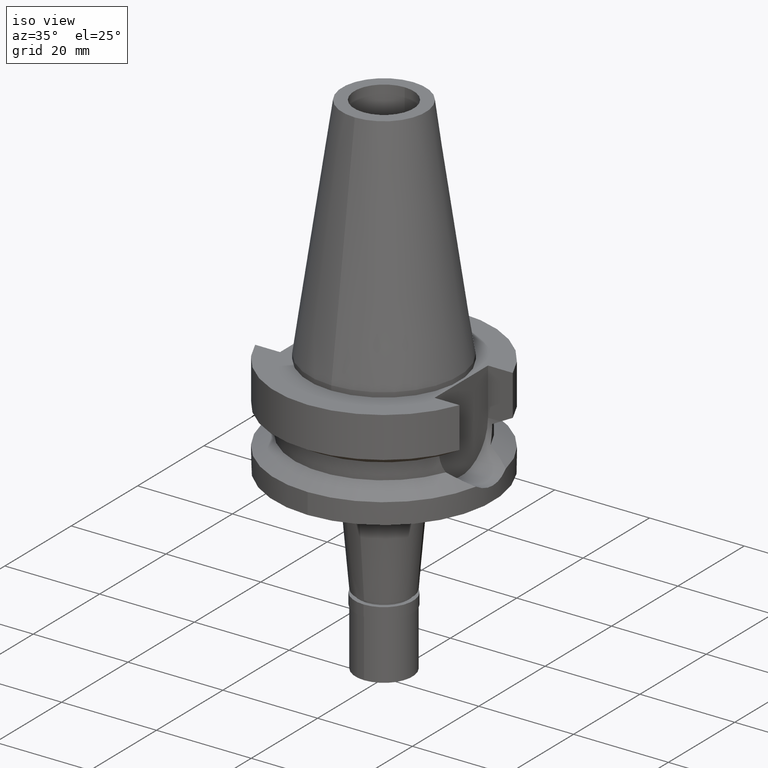
[diagram: clean part render]
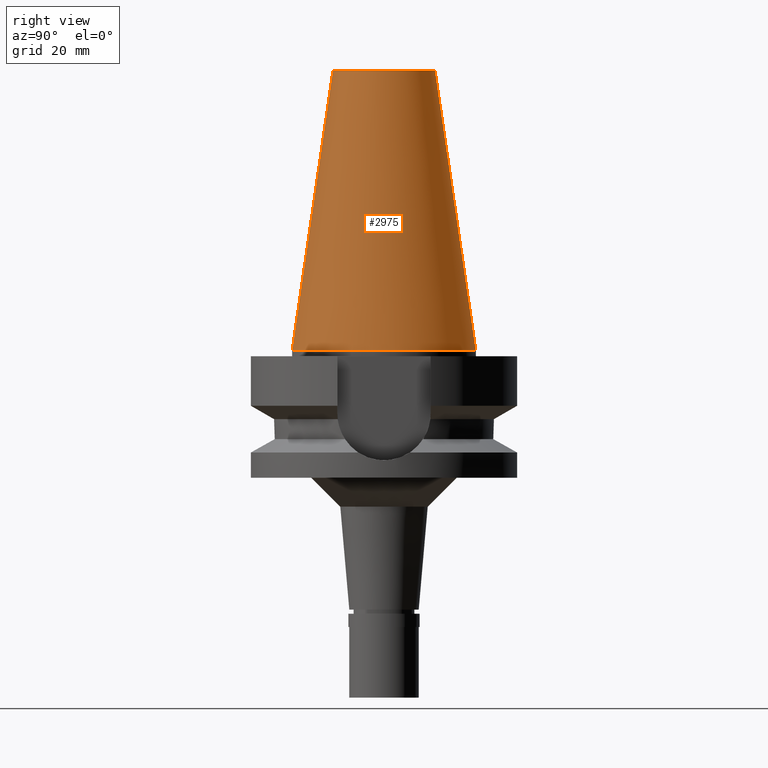
[diagram: tour spotlight — one face highlighted and labeled with its STEP entity id]
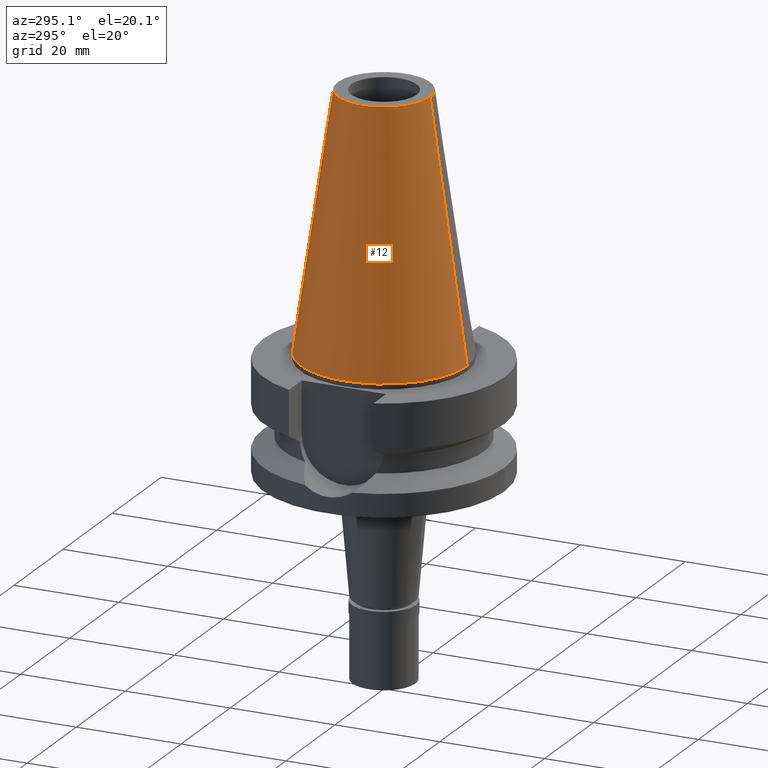
[diagram: tour spotlight — one face highlighted and labeled with its STEP entity id]
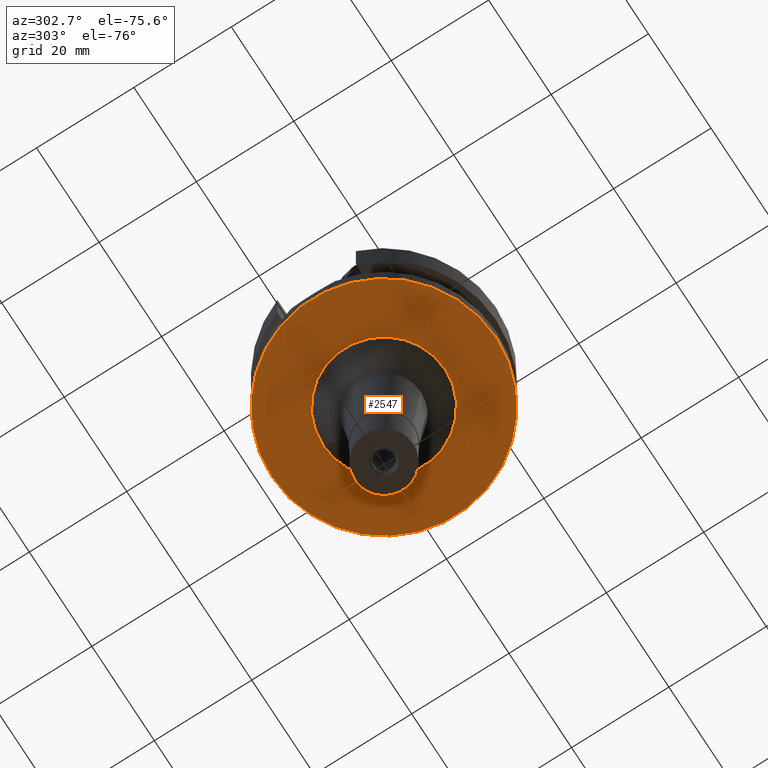
[diagram: tour spotlight — one face highlighted and labeled with its STEP entity id]
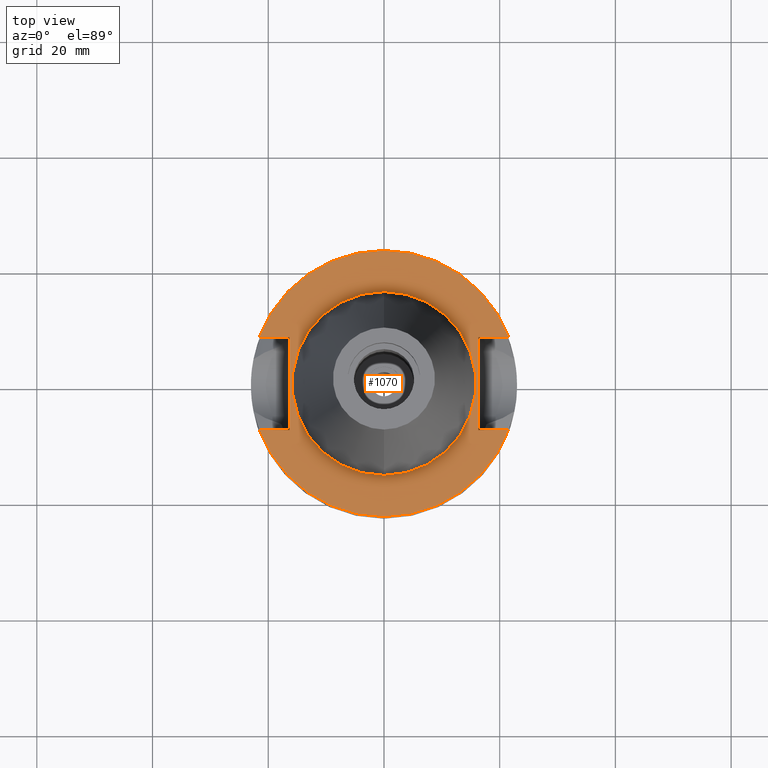
[diagram: tour spotlight — one face highlighted and labeled with its STEP entity id]
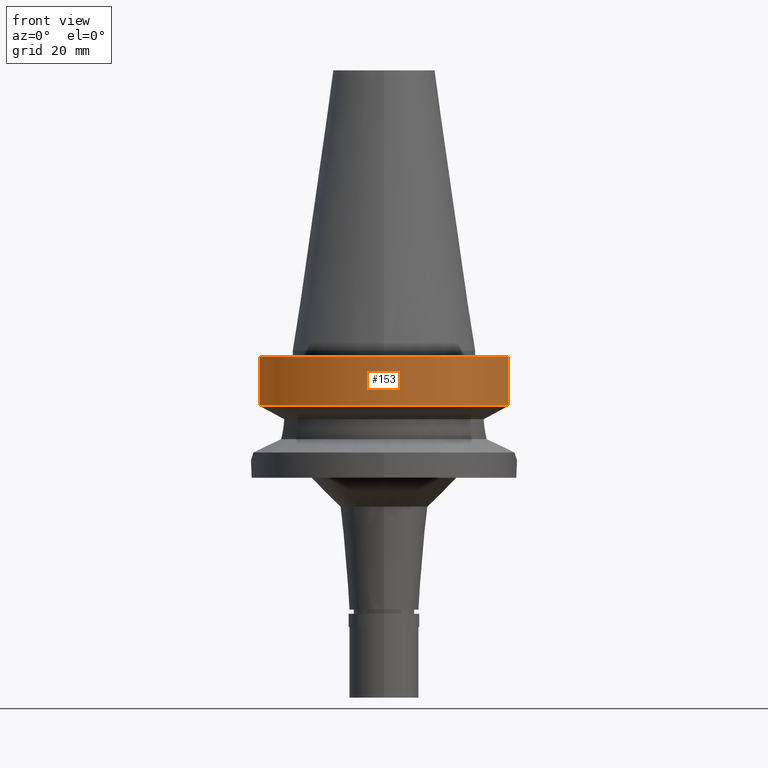
[diagram: tour spotlight — one face highlighted and labeled with its STEP entity id]
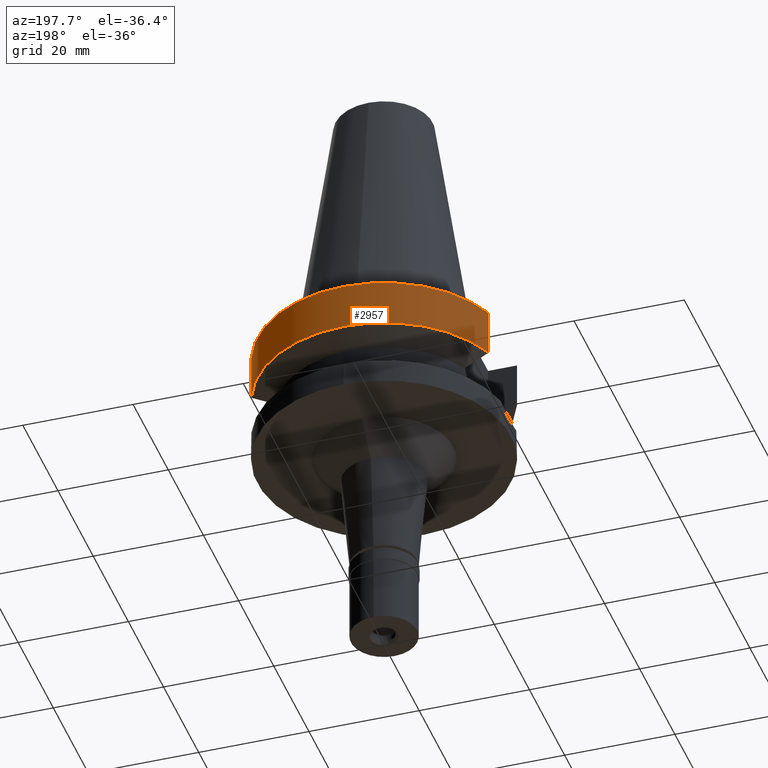
[diagram: tour spotlight — one face highlighted and labeled with its STEP entity id]
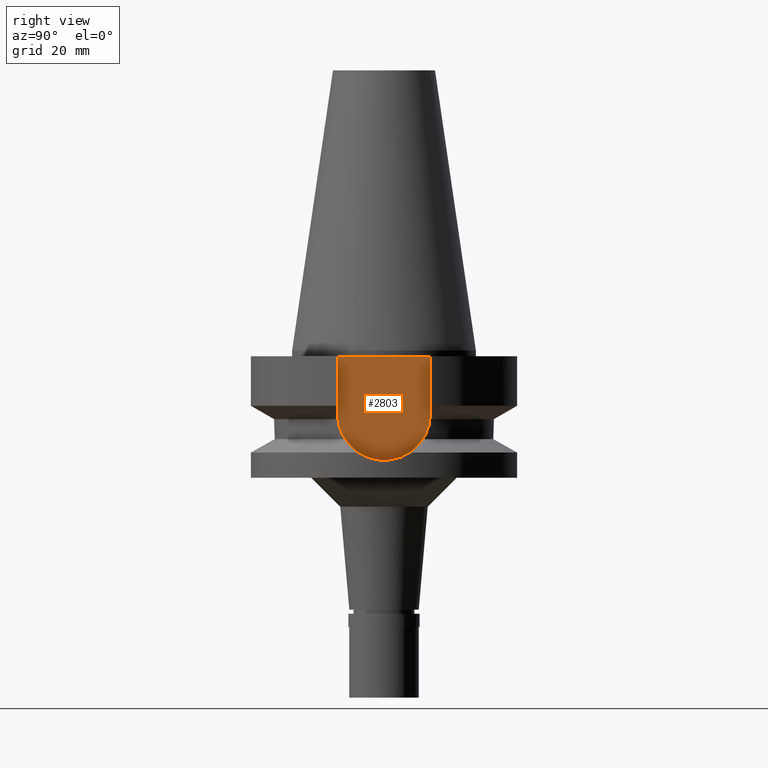
[diagram: tour spotlight — one face highlighted and labeled with its STEP entity id]
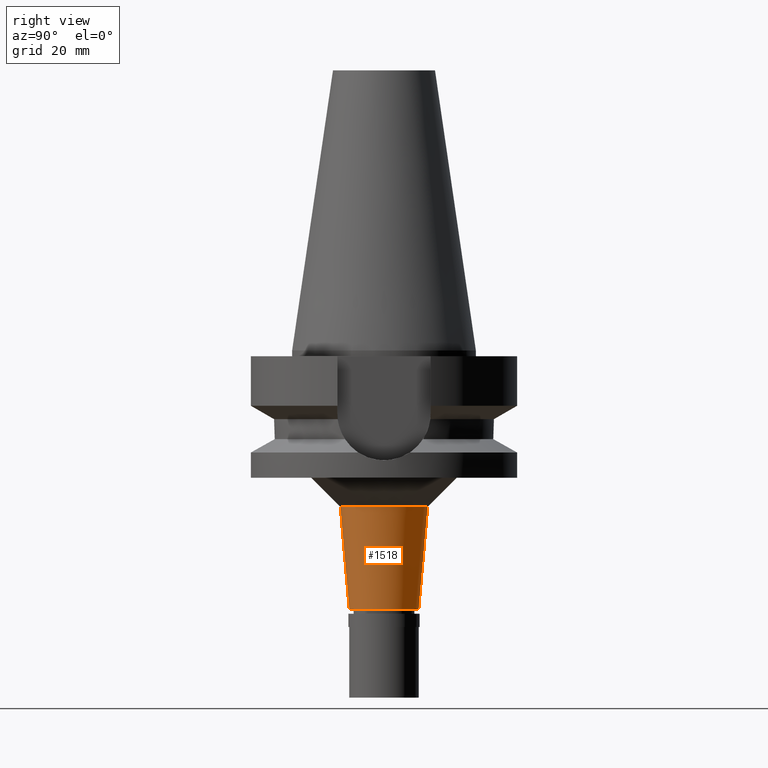
[diagram: tour spotlight — one face highlighted and labeled with its STEP entity id]
A machine part: a face-by-face anatomy tour. The part has 74 B-rep faces; the first image is the clean iso view, then the 8 largest visible faces are spotlighted one at a time (largest first), each with its STEP entity span.

Face 1 — right view, entity #2975. In plain terms, the highlighted conical surface has half-angle 8.297 deg.
Definition (entity closure, byte-faithful):
#155 = CARTESIAN_POINT ( 'NONE',  ( 0.0000000000000000000, 8.816791732783000768, 48.39999999999999858 ) ) ;
#178 = DIRECTION ( 'NONE',  ( 0.0000000000000000000, -0.1443043893539925626, -0.9895333461855498891 ) ) ;
#392 = CARTESIAN_POINT ( 'NONE',  ( 0.0000000000000000000, -15.87500000000000000, -1.598721155459999993E-13 ) ) ;
#451 = CARTESIAN_POINT ( 'NONE',  ( 0.0000000000000000000, 1.521011324540999938E-14, 48.39999999999999858 ) ) ;
#531 = CIRCLE ( 'NONE', #2127, 8.816791732783000768 ) ;
#665 = AXIS2_PLACEMENT_3D ( 'NONE', #2446, #2285, #856 ) ;
#800 = CARTESIAN_POINT ( 'NONE',  ( 0.0000000000000000000, 8.816791732783000768, 48.39999999999999858 ) ) ;
#822 = CONICAL_SURFACE ( 'NONE', #912, 12.34589586639000025, 0.1448099680379422438 ) ;
#856 = DIRECTION ( 'NONE',  ( 0.0000000000000000000, 1.000000000000000000, 0.0000000000000000000 ) ) ;
#875 = ORIENTED_EDGE ( 'NONE', *, *, #1558, .F. ) ;
#908 = CIRCLE ( 'NONE', #665, 15.87500000000000000 ) ;
#912 = AXIS2_PLACEMENT_3D ( 'NONE', #1151, #914, #1185 ) ;
#914 = DIRECTION ( 'NONE',  ( 0.0000000000000000000, 0.0000000000000000000, -1.000000000000000000 ) ) ;
#1147 = VERTEX_POINT ( 'NONE', #1782 ) ;
#1151 = CARTESIAN_POINT ( 'NONE',  ( 0.0000000000000000000, 1.521011324540999938E-14, 24.19999999999999929 ) ) ;
#1159 = EDGE_LOOP ( 'NONE', ( #1334, #1340, #875, #2076 ) ) ;
#1185 = DIRECTION ( 'NONE',  ( 0.0000000000000000000, -1.000000000000000000, 0.0000000000000000000 ) ) ;
#1334 = ORIENTED_EDGE ( 'NONE', *, *, #2902, .T. ) ;
#1340 = ORIENTED_EDGE ( 'NONE', *, *, #1533, .T. ) ;
#1381 = CARTESIAN_POINT ( 'NONE',  ( 0.0000000000000000000, 15.87500000000000000, -1.598721155459999993E-13 ) ) ;
#1391 = DIRECTION ( 'NONE',  ( 0.0000000000000000000, 1.000000000000000000, 0.0000000000000000000 ) ) ;
#1533 = EDGE_CURVE ( 'NONE', #1147, #2788, #2464, .T. ) ;
#1558 = EDGE_CURVE ( 'NONE', #2965, #2788, #908, .T. ) ;
#1782 = CARTESIAN_POINT ( 'NONE',  ( 0.0000000000000000000, -8.816791732783000768, 48.39999999999999858 ) ) ;
#2001 = DIRECTION ( 'NONE',  ( 0.0000000000000000000, 0.1443043893539925626, -0.9895333461855498891 ) ) ;
#2076 = ORIENTED_EDGE ( 'NONE', *, *, #2440, .F. ) ;
#2127 = AXIS2_PLACEMENT_3D ( 'NONE', #451, #2750, #1391 ) ;
#2228 = LINE ( 'NONE', #155, #2683 ) ;
#2252 = CARTESIAN_POINT ( 'NONE',  ( 0.0000000000000000000, -8.816791732783000768, 48.39999999999999858 ) ) ;
#2285 = DIRECTION ( 'NONE',  ( 0.0000000000000000000, 0.0000000000000000000, -1.000000000000000000 ) ) ;
#2292 = FACE_OUTER_BOUND ( 'NONE', #1159, .T. ) ;
#2401 = VECTOR ( 'NONE', #178, 1000.000000000000114 ) ;
#2440 = EDGE_CURVE ( 'NONE', #2659, #2965, #2228, .T. ) ;
#2446 = CARTESIAN_POINT ( 'NONE',  ( 0.0000000000000000000, 1.521011324540999938E-14, -3.694822225953000089E-13 ) ) ;
#2464 = LINE ( 'NONE', #2252, #2401 ) ;
#2659 = VERTEX_POINT ( 'NONE', #800 ) ;
#2683 = VECTOR ( 'NONE', #2001, 1000.000000000000114 ) ;
#2750 = DIRECTION ( 'NONE',  ( 0.0000000000000000000, 0.0000000000000000000, -1.000000000000000000 ) ) ;
#2788 = VERTEX_POINT ( 'NONE', #392 ) ;
#2902 = EDGE_CURVE ( 'NONE', #2659, #1147, #531, .T. ) ;
#2965 = VERTEX_POINT ( 'NONE', #1381 ) ;
#2975 = ADVANCED_FACE ( 'NONE', ( #2292 ), #822, .T. ) ;

Face 2 — auxiliary view, entity #12. In plain terms, the highlighted conical surface has half-angle 8.297 deg.
Definition (entity closure, byte-faithful):
#12 = ADVANCED_FACE ( 'NONE', ( #277 ), #1936, .T. ) ;
#91 = DIRECTION ( 'NONE',  ( 0.0000000000000000000, 0.0000000000000000000, -1.000000000000000000 ) ) ;
#97 = DIRECTION ( 'NONE',  ( 0.0000000000000000000, -1.000000000000000000, 0.0000000000000000000 ) ) ;
#155 = CARTESIAN_POINT ( 'NONE',  ( 0.0000000000000000000, 8.816791732783000768, 48.39999999999999858 ) ) ;
#178 = DIRECTION ( 'NONE',  ( 0.0000000000000000000, -0.1443043893539925626, -0.9895333461855498891 ) ) ;
#277 = FACE_OUTER_BOUND ( 'NONE', #2598, .T. ) ;
#278 = DIRECTION ( 'NONE',  ( 0.0000000000000000000, 0.0000000000000000000, -1.000000000000000000 ) ) ;
#392 = CARTESIAN_POINT ( 'NONE',  ( 0.0000000000000000000, -15.87500000000000000, -1.598721155459999993E-13 ) ) ;
#493 = DIRECTION ( 'NONE',  ( 0.0000000000000000000, -1.000000000000000000, 0.0000000000000000000 ) ) ;
#519 = ORIENTED_EDGE ( 'NONE', *, *, #2604, .F. ) ;
#576 = CIRCLE ( 'NONE', #1009, 8.816791732783000768 ) ;
#791 = CARTESIAN_POINT ( 'NONE',  ( 0.0000000000000000000, 1.521011324540999938E-14, 24.19999999999999929 ) ) ;
#800 = CARTESIAN_POINT ( 'NONE',  ( 0.0000000000000000000, 8.816791732783000768, 48.39999999999999858 ) ) ;
#1009 = AXIS2_PLACEMENT_3D ( 'NONE', #2346, #278, #493 ) ;
#1020 = AXIS2_PLACEMENT_3D ( 'NONE', #791, #2595, #97 ) ;
#1094 = ORIENTED_EDGE ( 'NONE', *, *, #1533, .F. ) ;
#1107 = ORIENTED_EDGE ( 'NONE', *, *, #2112, .T. ) ;
#1147 = VERTEX_POINT ( 'NONE', #1782 ) ;
#1381 = CARTESIAN_POINT ( 'NONE',  ( 0.0000000000000000000, 15.87500000000000000, -1.598721155459999993E-13 ) ) ;
#1466 = CARTESIAN_POINT ( 'NONE',  ( 0.0000000000000000000, 1.521011324540999938E-14, -3.694822225953000089E-13 ) ) ;
#1494 = CIRCLE ( 'NONE', #2029, 15.87500000000000000 ) ;
#1533 = EDGE_CURVE ( 'NONE', #1147, #2788, #2464, .T. ) ;
#1782 = CARTESIAN_POINT ( 'NONE',  ( 0.0000000000000000000, -8.816791732783000768, 48.39999999999999858 ) ) ;
#1873 = DIRECTION ( 'NONE',  ( 0.0000000000000000000, -1.000000000000000000, 0.0000000000000000000 ) ) ;
#1936 = CONICAL_SURFACE ( 'NONE', #1020, 12.34589586639000025, 0.1448099680379422438 ) ;
#2001 = DIRECTION ( 'NONE',  ( 0.0000000000000000000, 0.1443043893539925626, -0.9895333461855498891 ) ) ;
#2029 = AXIS2_PLACEMENT_3D ( 'NONE', #1466, #91, #1873 ) ;
#2112 = EDGE_CURVE ( 'NONE', #1147, #2659, #576, .T. ) ;
#2228 = LINE ( 'NONE', #155, #2683 ) ;
#2252 = CARTESIAN_POINT ( 'NONE',  ( 0.0000000000000000000, -8.816791732783000768, 48.39999999999999858 ) ) ;
#2331 = ORIENTED_EDGE ( 'NONE', *, *, #2440, .T. ) ;
#2346 = CARTESIAN_POINT ( 'NONE',  ( 0.0000000000000000000, 1.521011324540999938E-14, 48.39999999999999858 ) ) ;
#2401 = VECTOR ( 'NONE', #178, 1000.000000000000114 ) ;
#2440 = EDGE_CURVE ( 'NONE', #2659, #2965, #2228, .T. ) ;
#2464 = LINE ( 'NONE', #2252, #2401 ) ;
#2595 = DIRECTION ( 'NONE',  ( 0.0000000000000000000, 0.0000000000000000000, -1.000000000000000000 ) ) ;
#2598 = EDGE_LOOP ( 'NONE', ( #519, #1094, #1107, #2331 ) ) ;
#2604 = EDGE_CURVE ( 'NONE', #2788, #2965, #1494, .T. ) ;
#2659 = VERTEX_POINT ( 'NONE', #800 ) ;
#2683 = VECTOR ( 'NONE', #2001, 1000.000000000000114 ) ;
#2788 = VERTEX_POINT ( 'NONE', #392 ) ;
#2965 = VERTEX_POINT ( 'NONE', #1381 ) ;

Face 3 — auxiliary view, entity #2547. In plain terms, the highlighted planar face has unit normal (0, 0, -1).
Definition (entity closure, byte-faithful):
#182 = CARTESIAN_POINT ( 'NONE',  ( 0.0000000000000000000, 0.0000000000000000000, -22.00000000000000000 ) ) ;
#199 = CARTESIAN_POINT ( 'NONE',  ( 0.0000000000000000000, -23.00000000000000000, -22.00000000000000000 ) ) ;
#226 = VERTEX_POINT ( 'NONE', #2759 ) ;
#260 = VERTEX_POINT ( 'NONE', #629 ) ;
#295 = EDGE_LOOP ( 'NONE', ( #622, #2585 ) ) ;
#427 = FACE_OUTER_BOUND ( 'NONE', #295, .T. ) ;
#441 = VERTEX_POINT ( 'NONE', #511 ) ;
#511 = CARTESIAN_POINT ( 'NONE',  ( 0.0000000000000000000, 23.00000000000000000, -22.00000000000000000 ) ) ;
#518 = AXIS2_PLACEMENT_3D ( 'NONE', #1746, #660, #2697 ) ;
#622 = ORIENTED_EDGE ( 'NONE', *, *, #1646, .F. ) ;
#629 = CARTESIAN_POINT ( 'NONE',  ( 0.0000000000000000000, 12.55729821075999908, -22.00000000000000000 ) ) ;
#660 = DIRECTION ( 'NONE',  ( 0.0000000000000000000, 0.0000000000000000000, 1.000000000000000000 ) ) ;
#716 = AXIS2_PLACEMENT_3D ( 'NONE', #1315, #1246, #2233 ) ;
#722 = CIRCLE ( 'NONE', #1167, 12.55729821075999908 ) ;
#1167 = AXIS2_PLACEMENT_3D ( 'NONE', #2551, #1897, #1658 ) ;
#1182 = EDGE_CURVE ( 'NONE', #1527, #441, #1933, .T. ) ;
#1246 = DIRECTION ( 'NONE',  ( 0.0000000000000000000, 0.0000000000000000000, -1.000000000000000000 ) ) ;
#1287 = EDGE_CURVE ( 'NONE', #226, #260, #722, .T. ) ;
#1315 = CARTESIAN_POINT ( 'NONE',  ( 0.0000000000000000000, 0.0000000000000000000, -22.00000000000000000 ) ) ;
#1387 = PLANE ( 'NONE',  #2123 ) ;
#1446 = CIRCLE ( 'NONE', #716, 12.55729821075999908 ) ;
#1527 = VERTEX_POINT ( 'NONE', #199 ) ;
#1646 = EDGE_CURVE ( 'NONE', #441, #1527, #2775, .T. ) ;
#1658 = DIRECTION ( 'NONE',  ( 0.0000000000000000000, -1.000000000000000000, 0.0000000000000000000 ) ) ;
#1746 = CARTESIAN_POINT ( 'NONE',  ( 0.0000000000000000000, 1.881302412850000052E-14, -22.00000000000000000 ) ) ;
#1897 = DIRECTION ( 'NONE',  ( 0.0000000000000000000, 0.0000000000000000000, -1.000000000000000000 ) ) ;
#1933 = CIRCLE ( 'NONE', #2552, 23.00000000000000000 ) ;
#2011 = ORIENTED_EDGE ( 'NONE', *, *, #1287, .F. ) ;
#2042 = EDGE_CURVE ( 'NONE', #260, #226, #1446, .T. ) ;
#2052 = FACE_BOUND ( 'NONE', #2876, .T. ) ;
#2082 = DIRECTION ( 'NONE',  ( 0.0000000000000000000, 0.0000000000000000000, -1.000000000000000000 ) ) ;
#2123 = AXIS2_PLACEMENT_3D ( 'NONE', #182, #2082, #2960 ) ;
#2139 = CARTESIAN_POINT ( 'NONE',  ( 0.0000000000000000000, 1.881302412850000052E-14, -22.00000000000000000 ) ) ;
#2233 = DIRECTION ( 'NONE',  ( 0.0000000000000000000, 1.000000000000000000, 0.0000000000000000000 ) ) ;
#2522 = DIRECTION ( 'NONE',  ( 0.0000000000000000000, -1.000000000000000000, 0.0000000000000000000 ) ) ;
#2547 = ADVANCED_FACE ( 'NONE', ( #427, #2052 ), #1387, .T. ) ;
#2551 = CARTESIAN_POINT ( 'NONE',  ( 0.0000000000000000000, 0.0000000000000000000, -22.00000000000000000 ) ) ;
#2552 = AXIS2_PLACEMENT_3D ( 'NONE', #2139, #2802, #2522 ) ;
#2585 = ORIENTED_EDGE ( 'NONE', *, *, #1182, .F. ) ;
#2697 = DIRECTION ( 'NONE',  ( 0.0000000000000000000, 1.000000000000000000, 0.0000000000000000000 ) ) ;
#2759 = CARTESIAN_POINT ( 'NONE',  ( 0.0000000000000000000, -12.55729821075999908, -22.00000000000000000 ) ) ;
#2775 = CIRCLE ( 'NONE', #518, 23.00000000000000000 ) ;
#2802 = DIRECTION ( 'NONE',  ( 0.0000000000000000000, 0.0000000000000000000, 1.000000000000000000 ) ) ;
#2823 = ORIENTED_EDGE ( 'NONE', *, *, #2042, .F. ) ;
#2876 = EDGE_LOOP ( 'NONE', ( #2823, #2011 ) ) ;
#2960 = DIRECTION ( 'NONE',  ( 0.0000000000000000000, -1.000000000000000000, 0.0000000000000000000 ) ) ;

Face 4 — top view, entity #1070. In plain terms, the highlighted planar face has unit normal (0, 0, -1).
Definition (entity closure, byte-faithful):
#13 = ORIENTED_EDGE ( 'NONE', *, *, #2028, .F. ) ;
#22 = LINE ( 'NONE', #938, #1312 ) ;
#45 = AXIS2_PLACEMENT_3D ( 'NONE', #2508, #2490, #2700 ) ;
#70 = CARTESIAN_POINT ( 'NONE',  ( -16.29999999999999716, -8.050000000000000711, -1.000000000000000000 ) ) ;
#129 = EDGE_CURVE ( 'NONE', #2132, #757, #1117, .T. ) ;
#145 = VERTEX_POINT ( 'NONE', #982 ) ;
#146 = VECTOR ( 'NONE', #1086, 1000.000000000000000 ) ;
#151 = ORIENTED_EDGE ( 'NONE', *, *, #2005, .T. ) ;
#175 = VERTEX_POINT ( 'NONE', #547 ) ;
#183 = FACE_OUTER_BOUND ( 'NONE', #1139, .T. ) ;
#229 = EDGE_CURVE ( 'NONE', #365, #2132, #22, .T. ) ;
#232 = CARTESIAN_POINT ( 'NONE',  ( -21.54524309446999908, 8.050000000000000711, -1.000000000000000000 ) ) ;
#253 = DIRECTION ( 'NONE',  ( 0.0000000000000000000, -1.000000000000000000, 0.0000000000000000000 ) ) ;
#279 = VERTEX_POINT ( 'NONE', #232 ) ;
#315 = DIRECTION ( 'NONE',  ( 0.0000000000000000000, 1.000000000000000000, 0.0000000000000000000 ) ) ;
#345 = EDGE_CURVE ( 'NONE', #473, #757, #2232, .T. ) ;
#365 = VERTEX_POINT ( 'NONE', #1353 ) ;
#387 = DIRECTION ( 'NONE',  ( 0.0000000000000000000, 0.0000000000000000000, -1.000000000000000000 ) ) ;
#431 = LINE ( 'NONE', #70, #854 ) ;
#473 = VERTEX_POINT ( 'NONE', #1482 ) ;
#480 = DIRECTION ( 'NONE',  ( 0.0000000000000000000, 1.000000000000000000, 0.0000000000000000000 ) ) ;
#543 = EDGE_CURVE ( 'NONE', #2422, #175, #1672, .T. ) ;
#547 = CARTESIAN_POINT ( 'NONE',  ( 0.0000000000000000000, 15.87500000000000000, -0.9999999999999000799 ) ) ;
#624 = DIRECTION ( 'NONE',  ( 0.0000000000000000000, -1.000000000000000000, 0.0000000000000000000 ) ) ;
#663 = VERTEX_POINT ( 'NONE', #2069 ) ;
#667 = VECTOR ( 'NONE', #2383, 1000.000000000000000 ) ;
#751 = ORIENTED_EDGE ( 'NONE', *, *, #543, .F. ) ;
#757 = VERTEX_POINT ( 'NONE', #2231 ) ;
#764 = EDGE_CURVE ( 'NONE', #473, #663, #431, .T. ) ;
#773 = CARTESIAN_POINT ( 'NONE',  ( 0.0000000000000000000, 1.881302412850000052E-14, -0.9999999999999000799 ) ) ;
#832 = CARTESIAN_POINT ( 'NONE',  ( 0.0000000000000000000, -15.87500000000000000, -0.9999999999999000799 ) ) ;
#854 = VECTOR ( 'NONE', #480, 1000.000000000000000 ) ;
#938 = CARTESIAN_POINT ( 'NONE',  ( 16.29999999999999716, -8.050000000000000711, -1.000000000000000000 ) ) ;
#982 = CARTESIAN_POINT ( 'NONE',  ( 16.29999999999999716, 8.050000000000000711, -1.000000000000000000 ) ) ;
#1059 = CIRCLE ( 'NONE', #2166, 23.00000000000000000 ) ;
#1070 = ADVANCED_FACE ( 'NONE', ( #183, #2480 ), #2053, .F. ) ;
#1086 = DIRECTION ( 'NONE',  ( -1.000000000000000000, -9.313164748262000573E-14, 0.0000000000000000000 ) ) ;
#1096 = CARTESIAN_POINT ( 'NONE',  ( -16.29999999999999716, 8.050000000000000711, -1.000000000000000000 ) ) ;
#1117 = CIRCLE ( 'NONE', #2786, 23.00000000000000000 ) ;
#1139 = EDGE_LOOP ( 'NONE', ( #1213, #2954, #1962, #1415, #151, #13, #2524, #1977 ) ) ;
#1160 = LINE ( 'NONE', #1096, #2079 ) ;
#1213 = ORIENTED_EDGE ( 'NONE', *, *, #345, .T. ) ;
#1247 = DIRECTION ( 'NONE',  ( 0.0000000000000000000, -1.000000000000000000, 0.0000000000000000000 ) ) ;
#1249 = DIRECTION ( 'NONE',  ( 0.0000000000000000000, -1.000000000000000000, 0.0000000000000000000 ) ) ;
#1312 = VECTOR ( 'NONE', #2769, 1000.000000000000000 ) ;
#1353 = CARTESIAN_POINT ( 'NONE',  ( 16.29999999999999716, -8.050000000000000711, -1.000000000000000000 ) ) ;
#1356 = DIRECTION ( 'NONE',  ( -1.000000000000000000, 9.347030801892000173E-14, 0.0000000000000000000 ) ) ;
#1415 = ORIENTED_EDGE ( 'NONE', *, *, #2941, .F. ) ;
#1482 = CARTESIAN_POINT ( 'NONE',  ( -16.29999999999999716, -8.050000000000000711, -1.000000000000000000 ) ) ;
#1490 = AXIS2_PLACEMENT_3D ( 'NONE', #773, #1688, #1247 ) ;
#1522 = ORIENTED_EDGE ( 'NONE', *, *, #2530, .F. ) ;
#1551 = CARTESIAN_POINT ( 'NONE',  ( 16.29999999999999716, 8.050000000000000711, -1.000000000000000000 ) ) ;
#1590 = CARTESIAN_POINT ( 'NONE',  ( 0.0000000000000000000, 1.212400331155999925E-14, -1.000000000000000000 ) ) ;
#1597 = LINE ( 'NONE', #1551, #2932 ) ;
#1672 = CIRCLE ( 'NONE', #1490, 15.87500000000000000 ) ;
#1684 = CARTESIAN_POINT ( 'NONE',  ( 21.54524309446999908, 8.050000000000000711, -0.9999999999999000799 ) ) ;
#1688 = DIRECTION ( 'NONE',  ( 0.0000000000000000000, 0.0000000000000000000, 1.000000000000000000 ) ) ;
#1729 = AXIS2_PLACEMENT_3D ( 'NONE', #1590, #2066, #624 ) ;
#1784 = CARTESIAN_POINT ( 'NONE',  ( -16.29999999999999716, -8.050000000000000711, -1.000000000000000000 ) ) ;
#1945 = CARTESIAN_POINT ( 'NONE',  ( 0.0000000000000000000, 1.881302412850000052E-14, -0.9999999999999000799 ) ) ;
#1962 = ORIENTED_EDGE ( 'NONE', *, *, #229, .F. ) ;
#1963 = VERTEX_POINT ( 'NONE', #1684 ) ;
#1977 = ORIENTED_EDGE ( 'NONE', *, *, #764, .F. ) ;
#2005 = EDGE_CURVE ( 'NONE', #145, #1963, #2454, .T. ) ;
#2028 = EDGE_CURVE ( 'NONE', #279, #1963, #1059, .T. ) ;
#2053 = PLANE ( 'NONE',  #1729 ) ;
#2066 = DIRECTION ( 'NONE',  ( 0.0000000000000000000, 0.0000000000000000000, -1.000000000000000000 ) ) ;
#2069 = CARTESIAN_POINT ( 'NONE',  ( -16.29999999999999716, 8.050000000000000711, -1.000000000000000000 ) ) ;
#2079 = VECTOR ( 'NONE', #1356, 1000.000000000000000 ) ;
#2126 = CARTESIAN_POINT ( 'NONE',  ( 21.54524309446999908, -8.050000000000000711, -1.000000000000000000 ) ) ;
#2132 = VERTEX_POINT ( 'NONE', #2126 ) ;
#2159 = CARTESIAN_POINT ( 'NONE',  ( 16.29999999999999716, 8.050000000000000711, -1.000000000000000000 ) ) ;
#2166 = AXIS2_PLACEMENT_3D ( 'NONE', #2179, #387, #315 ) ;
#2179 = CARTESIAN_POINT ( 'NONE',  ( 0.0000000000000000000, 1.881302412850000052E-14, -0.9999999999999000799 ) ) ;
#2231 = CARTESIAN_POINT ( 'NONE',  ( -21.54524309446999908, -8.050000000000000711, -1.000000000000000000 ) ) ;
#2232 = LINE ( 'NONE', #1784, #146 ) ;
#2359 = EDGE_LOOP ( 'NONE', ( #1522, #751 ) ) ;
#2383 = DIRECTION ( 'NONE',  ( 1.000000000000000000, 9.380896855521999773E-14, 0.0000000000000000000 ) ) ;
#2388 = DIRECTION ( 'NONE',  ( 0.0000000000000000000, 0.0000000000000000000, -1.000000000000000000 ) ) ;
#2422 = VERTEX_POINT ( 'NONE', #832 ) ;
#2454 = LINE ( 'NONE', #2159, #667 ) ;
#2455 = CIRCLE ( 'NONE', #45, 15.87500000000000000 ) ;
#2480 = FACE_BOUND ( 'NONE', #2359, .T. ) ;
#2490 = DIRECTION ( 'NONE',  ( 0.0000000000000000000, 0.0000000000000000000, 1.000000000000000000 ) ) ;
#2495 = EDGE_CURVE ( 'NONE', #663, #279, #1160, .T. ) ;
#2508 = CARTESIAN_POINT ( 'NONE',  ( 0.0000000000000000000, 1.881302412850000052E-14, -0.9999999999999000799 ) ) ;
#2524 = ORIENTED_EDGE ( 'NONE', *, *, #2495, .F. ) ;
#2530 = EDGE_CURVE ( 'NONE', #175, #2422, #2455, .T. ) ;
#2700 = DIRECTION ( 'NONE',  ( 0.0000000000000000000, 1.000000000000000000, 0.0000000000000000000 ) ) ;
#2769 = DIRECTION ( 'NONE',  ( 1.000000000000000000, -9.347030801892000173E-14, 0.0000000000000000000 ) ) ;
#2786 = AXIS2_PLACEMENT_3D ( 'NONE', #1945, #2388, #1249 ) ;
#2932 = VECTOR ( 'NONE', #253, 1000.000000000000000 ) ;
#2941 = EDGE_CURVE ( 'NONE', #145, #365, #1597, .T. ) ;
#2954 = ORIENTED_EDGE ( 'NONE', *, *, #129, .F. ) ;

Face 5 — front view, entity #153. In plain terms, the highlighted cylindrical surface (partial cylindrical patch) has radius 23 mm, axis along (0, 0, -1).
Definition (entity closure, byte-faithful):
#19 = CARTESIAN_POINT ( 'NONE',  ( 0.0000000000000000000, 1.881302412850000052E-14, 53.62000000000000455 ) ) ;
#74 = LINE ( 'NONE', #2607, #1404 ) ;
#84 = DIRECTION ( 'NONE',  ( 0.0000000000000000000, -1.000000000000000000, 0.0000000000000000000 ) ) ;
#129 = EDGE_CURVE ( 'NONE', #2132, #757, #1117, .T. ) ;
#153 = ADVANCED_FACE ( 'NONE', ( #2329 ), #2831, .T. ) ;
#258 = DIRECTION ( 'NONE',  ( 0.0000000000000000000, -1.000000000000000000, 0.0000000000000000000 ) ) ;
#272 = DIRECTION ( 'NONE',  ( 0.0000000000000000000, 0.0000000000000000000, -1.000000000000000000 ) ) ;
#275 = VERTEX_POINT ( 'NONE', #2748 ) ;
#307 = EDGE_CURVE ( 'NONE', #275, #853, #676, .T. ) ;
#359 = DIRECTION ( 'NONE',  ( 0.0000000000000000000, 0.0000000000000000000, 1.000000000000000000 ) ) ;
#402 = DIRECTION ( 'NONE',  ( -9.134800745262689569E-08, -2.444862503416914398E-07, -0.9999999999999659162 ) ) ;
#580 = VECTOR ( 'NONE', #2002, 1000.000000000000114 ) ;
#676 = CIRCLE ( 'NONE', #1836, 23.00000000000000000 ) ;
#703 = ORIENTED_EDGE ( 'NONE', *, *, #129, .T. ) ;
#757 = VERTEX_POINT ( 'NONE', #2231 ) ;
#853 = VERTEX_POINT ( 'NONE', #2211 ) ;
#898 = ORIENTED_EDGE ( 'NONE', *, *, #307, .T. ) ;
#1002 = EDGE_CURVE ( 'NONE', #275, #757, #2679, .T. ) ;
#1117 = CIRCLE ( 'NONE', #2786, 23.00000000000000000 ) ;
#1242 = CARTESIAN_POINT ( 'NONE',  ( 0.0000000000000000000, 1.093341284896999988E-14, -9.567208369710998639 ) ) ;
#1249 = DIRECTION ( 'NONE',  ( 0.0000000000000000000, -1.000000000000000000, 0.0000000000000000000 ) ) ;
#1404 = VECTOR ( 'NONE', #402, 1000.000000000000114 ) ;
#1756 = ORIENTED_EDGE ( 'NONE', *, *, #1949, .F. ) ;
#1836 = AXIS2_PLACEMENT_3D ( 'NONE', #1242, #359, #84 ) ;
#1846 = ORIENTED_EDGE ( 'NONE', *, *, #1002, .F. ) ;
#1945 = CARTESIAN_POINT ( 'NONE',  ( 0.0000000000000000000, 1.881302412850000052E-14, -0.9999999999999000799 ) ) ;
#1949 = EDGE_CURVE ( 'NONE', #2132, #853, #74, .T. ) ;
#2002 = DIRECTION ( 'NONE',  ( 1.843191671230997693E-08, -4.933165888406983159E-08, 0.9999999999999985567 ) ) ;
#2126 = CARTESIAN_POINT ( 'NONE',  ( 21.54524309446999908, -8.050000000000000711, -1.000000000000000000 ) ) ;
#2132 = VERTEX_POINT ( 'NONE', #2126 ) ;
#2211 = CARTESIAN_POINT ( 'NONE',  ( 21.54524309446999908, -8.050000000002000888, -9.567208369710998639 ) ) ;
#2231 = CARTESIAN_POINT ( 'NONE',  ( -21.54524309446999908, -8.050000000000000711, -1.000000000000000000 ) ) ;
#2272 = AXIS2_PLACEMENT_3D ( 'NONE', #19, #272, #258 ) ;
#2329 = FACE_OUTER_BOUND ( 'NONE', #2968, .T. ) ;
#2388 = DIRECTION ( 'NONE',  ( 0.0000000000000000000, 0.0000000000000000000, -1.000000000000000000 ) ) ;
#2607 = CARTESIAN_POINT ( 'NONE',  ( 21.54524309446999908, -8.050000000000000711, -1.000000000000000000 ) ) ;
#2679 = LINE ( 'NONE', #2701, #580 ) ;
#2701 = CARTESIAN_POINT ( 'NONE',  ( -21.54524325238000060, -8.049999577366000025, -9.567211146628999074 ) ) ;
#2748 = CARTESIAN_POINT ( 'NONE',  ( -21.54524325238000060, -8.049999577366000025, -9.567211146628999074 ) ) ;
#2786 = AXIS2_PLACEMENT_3D ( 'NONE', #1945, #2388, #1249 ) ;
#2831 = CYLINDRICAL_SURFACE ( 'NONE', #2272, 23.00000000000000000 ) ;
#2968 = EDGE_LOOP ( 'NONE', ( #1846, #898, #1756, #703 ) ) ;

Face 6 — auxiliary view, entity #2957. In plain terms, the highlighted cylindrical surface (partial cylindrical patch) has radius 23 mm, axis along (0, 0, -1).
Definition (entity closure, byte-faithful):
#88 = CIRCLE ( 'NONE', #569, 23.00000000000000000 ) ;
#232 = CARTESIAN_POINT ( 'NONE',  ( -21.54524309446999908, 8.050000000000000711, -1.000000000000000000 ) ) ;
#268 = CYLINDRICAL_SURFACE ( 'NONE', #2219, 23.00000000000000000 ) ;
#279 = VERTEX_POINT ( 'NONE', #232 ) ;
#315 = DIRECTION ( 'NONE',  ( 0.0000000000000000000, 1.000000000000000000, 0.0000000000000000000 ) ) ;
#330 = VERTEX_POINT ( 'NONE', #1740 ) ;
#387 = DIRECTION ( 'NONE',  ( 0.0000000000000000000, 0.0000000000000000000, -1.000000000000000000 ) ) ;
#462 = DIRECTION ( 'NONE',  ( 0.0000000000000000000, -1.000000000000000000, 0.0000000000000000000 ) ) ;
#512 = ORIENTED_EDGE ( 'NONE', *, *, #583, .T. ) ;
#569 = AXIS2_PLACEMENT_3D ( 'NONE', #2642, #2903, #1752 ) ;
#583 = EDGE_CURVE ( 'NONE', #330, #1304, #88, .T. ) ;
#679 = DIRECTION ( 'NONE',  ( -1.843134485870992695E-08, 4.933012910310982734E-08, 0.9999999999999985567 ) ) ;
#726 = LINE ( 'NONE', #933, #1580 ) ;
#933 = CARTESIAN_POINT ( 'NONE',  ( 21.54524325238000060, 8.049999577379001181, -9.567211146543000311 ) ) ;
#1059 = CIRCLE ( 'NONE', #2166, 23.00000000000000000 ) ;
#1063 = VECTOR ( 'NONE', #1728, 1000.000000000000114 ) ;
#1276 = CARTESIAN_POINT ( 'NONE',  ( -21.54524309446999908, 8.050000000000000711, -1.000000000000000000 ) ) ;
#1304 = VERTEX_POINT ( 'NONE', #2360 ) ;
#1580 = VECTOR ( 'NONE', #679, 1000.000000000000114 ) ;
#1677 = ORIENTED_EDGE ( 'NONE', *, *, #2028, .T. ) ;
#1684 = CARTESIAN_POINT ( 'NONE',  ( 21.54524309446999908, 8.050000000000000711, -0.9999999999999000799 ) ) ;
#1697 = EDGE_CURVE ( 'NONE', #330, #1963, #726, .T. ) ;
#1728 = DIRECTION ( 'NONE',  ( 9.134696492506688232E-08, 2.444834607303914619E-07, -0.9999999999999659162 ) ) ;
#1740 = CARTESIAN_POINT ( 'NONE',  ( 21.54524325238000060, 8.049999577379001181, -9.567211146543000311 ) ) ;
#1752 = DIRECTION ( 'NONE',  ( 0.0000000000000000000, 1.000000000000000000, 0.0000000000000000000 ) ) ;
#1820 = CARTESIAN_POINT ( 'NONE',  ( 0.0000000000000000000, 1.881302412850000052E-14, 53.62000000000000455 ) ) ;
#1963 = VERTEX_POINT ( 'NONE', #1684 ) ;
#2028 = EDGE_CURVE ( 'NONE', #279, #1963, #1059, .T. ) ;
#2166 = AXIS2_PLACEMENT_3D ( 'NONE', #2179, #387, #315 ) ;
#2179 = CARTESIAN_POINT ( 'NONE',  ( 0.0000000000000000000, 1.881302412850000052E-14, -0.9999999999999000799 ) ) ;
#2219 = AXIS2_PLACEMENT_3D ( 'NONE', #1820, #2527, #462 ) ;
#2281 = FACE_OUTER_BOUND ( 'NONE', #2952, .T. ) ;
#2284 = ORIENTED_EDGE ( 'NONE', *, *, #2708, .F. ) ;
#2360 = CARTESIAN_POINT ( 'NONE',  ( -21.54524231189000005, 8.050002094537999753, -9.567194606710000215 ) ) ;
#2413 = LINE ( 'NONE', #1276, #1063 ) ;
#2502 = ORIENTED_EDGE ( 'NONE', *, *, #1697, .F. ) ;
#2527 = DIRECTION ( 'NONE',  ( 0.0000000000000000000, 0.0000000000000000000, -1.000000000000000000 ) ) ;
#2642 = CARTESIAN_POINT ( 'NONE',  ( 0.0000000000000000000, 1.093341284896999988E-14, -9.567208369710998639 ) ) ;
#2708 = EDGE_CURVE ( 'NONE', #279, #1304, #2413, .T. ) ;
#2903 = DIRECTION ( 'NONE',  ( 0.0000000000000000000, 0.0000000000000000000, 1.000000000000000000 ) ) ;
#2952 = EDGE_LOOP ( 'NONE', ( #2284, #1677, #2502, #512 ) ) ;
#2957 = ADVANCED_FACE ( 'NONE', ( #2281 ), #268, .T. ) ;

Face 7 — right view, entity #2803. In plain terms, the highlighted planar face has unit normal (1, 0, 0).
Definition (entity closure, byte-faithful):
#44 = VERTEX_POINT ( 'NONE', #2165 ) ;
#76 = LINE ( 'NONE', #1439, #2207 ) ;
#89 = VECTOR ( 'NONE', #95, 1000.000000000000000 ) ;
#95 = DIRECTION ( 'NONE',  ( 0.0000000000000000000, 0.0000000000000000000, 1.000000000000000000 ) ) ;
#139 = AXIS2_PLACEMENT_3D ( 'NONE', #868, #1770, #2428 ) ;
#145 = VERTEX_POINT ( 'NONE', #982 ) ;
#212 = VERTEX_POINT ( 'NONE', #2566 ) ;
#253 = DIRECTION ( 'NONE',  ( 0.0000000000000000000, -1.000000000000000000, 0.0000000000000000000 ) ) ;
#273 = DIRECTION ( 'NONE',  ( 0.0000000000000000000, 0.0000000000000000000, -1.000000000000000000 ) ) ;
#365 = VERTEX_POINT ( 'NONE', #1353 ) ;
#449 = EDGE_CURVE ( 'NONE', #145, #212, #76, .T. ) ;
#546 = DIRECTION ( 'NONE',  ( -1.000000000000000000, 0.0000000000000000000, 0.0000000000000000000 ) ) ;
#753 = DIRECTION ( 'NONE',  ( 0.0000000000000000000, 0.0000000000000000000, -1.000000000000000000 ) ) ;
#868 = CARTESIAN_POINT ( 'NONE',  ( 16.29999999999999716, 0.0000000000000000000, 0.0000000000000000000 ) ) ;
#910 = CIRCLE ( 'NONE', #2634, 8.050000000000000711 ) ;
#982 = CARTESIAN_POINT ( 'NONE',  ( 16.29999999999999716, 8.050000000000000711, -1.000000000000000000 ) ) ;
#1032 = ORIENTED_EDGE ( 'NONE', *, *, #1502, .F. ) ;
#1353 = CARTESIAN_POINT ( 'NONE',  ( 16.29999999999999716, -8.050000000000000711, -1.000000000000000000 ) ) ;
#1439 = CARTESIAN_POINT ( 'NONE',  ( 16.29999999999999716, 8.050000000000000711, -1.000000000000000000 ) ) ;
#1502 = EDGE_CURVE ( 'NONE', #44, #365, #2148, .T. ) ;
#1520 = FACE_OUTER_BOUND ( 'NONE', #2058, .T. ) ;
#1551 = CARTESIAN_POINT ( 'NONE',  ( 16.29999999999999716, 8.050000000000000711, -1.000000000000000000 ) ) ;
#1597 = LINE ( 'NONE', #1551, #2932 ) ;
#1661 = ORIENTED_EDGE ( 'NONE', *, *, #2003, .F. ) ;
#1770 = DIRECTION ( 'NONE',  ( 1.000000000000000000, 0.0000000000000000000, 0.0000000000000000000 ) ) ;
#1921 = CARTESIAN_POINT ( 'NONE',  ( 16.29999999999999716, -8.050000000000000711, -10.94999999999999929 ) ) ;
#2003 = EDGE_CURVE ( 'NONE', #212, #44, #910, .T. ) ;
#2058 = EDGE_LOOP ( 'NONE', ( #1032, #1661, #2705, #2429 ) ) ;
#2148 = LINE ( 'NONE', #1921, #89 ) ;
#2165 = CARTESIAN_POINT ( 'NONE',  ( 16.29999999999999716, -8.050000000000000711, -10.94999999999999929 ) ) ;
#2207 = VECTOR ( 'NONE', #273, 1000.000000000000000 ) ;
#2236 = PLANE ( 'NONE',  #139 ) ;
#2428 = DIRECTION ( 'NONE',  ( 0.0000000000000000000, 1.000000000000000000, 0.0000000000000000000 ) ) ;
#2429 = ORIENTED_EDGE ( 'NONE', *, *, #2941, .T. ) ;
#2566 = CARTESIAN_POINT ( 'NONE',  ( 16.29999999999999716, 8.050000000000000711, -10.94999999999999929 ) ) ;
#2616 = CARTESIAN_POINT ( 'NONE',  ( 16.29999999999999716, 0.0000000000000000000, -10.94999999999999929 ) ) ;
#2634 = AXIS2_PLACEMENT_3D ( 'NONE', #2616, #546, #753 ) ;
#2705 = ORIENTED_EDGE ( 'NONE', *, *, #449, .F. ) ;
#2803 = ADVANCED_FACE ( 'NONE', ( #1520 ), #2236, .T. ) ;
#2932 = VECTOR ( 'NONE', #253, 1000.000000000000000 ) ;
#2941 = EDGE_CURVE ( 'NONE', #145, #365, #1597, .T. ) ;

Face 8 — right view, entity #1518. In plain terms, the highlighted conical surface has half-angle 5 deg.
Definition (entity closure, byte-faithful):
#223 = CARTESIAN_POINT ( 'NONE',  ( 0.0000000000000000000, 6.000000000000000000, -44.79999999999999716 ) ) ;
#411 = VERTEX_POINT ( 'NONE', #888 ) ;
#525 = CARTESIAN_POINT ( 'NONE',  ( 0.0000000000000000000, -7.557298210760999169, -27.00000000000000000 ) ) ;
#570 = AXIS2_PLACEMENT_3D ( 'NONE', #2505, #2062, #830 ) ;
#647 = ORIENTED_EDGE ( 'NONE', *, *, #1870, .T. ) ;
#830 = DIRECTION ( 'NONE',  ( 0.0000000000000000000, 1.000000000000000000, 0.0000000000000000000 ) ) ;
#888 = CARTESIAN_POINT ( 'NONE',  ( 0.0000000000000000000, -6.000000000000000000, -44.79999999999999716 ) ) ;
#960 = VECTOR ( 'NONE', #2656, 1000.000000000000114 ) ;
#1001 = VECTOR ( 'NONE', #1437, 1000.000000000000114 ) ;
#1035 = FACE_OUTER_BOUND ( 'NONE', #2459, .T. ) ;
#1050 = CARTESIAN_POINT ( 'NONE',  ( 0.0000000000000000000, 0.0000000000000000000, -44.79999999999999716 ) ) ;
#1157 = CIRCLE ( 'NONE', #2397, 7.557298210761999258 ) ;
#1279 = DIRECTION ( 'NONE',  ( 0.0000000000000000000, 0.0000000000000000000, 1.000000000000000000 ) ) ;
#1321 = ORIENTED_EDGE ( 'NONE', *, *, #2351, .T. ) ;
#1413 = EDGE_CURVE ( 'NONE', #1955, #1647, #1157, .T. ) ;
#1426 = CARTESIAN_POINT ( 'NONE',  ( 0.0000000000000000000, -7.557298210760999169, -27.00000000000000000 ) ) ;
#1437 = DIRECTION ( 'NONE',  ( 0.0000000000000000000, 0.08715574274763414342, -0.9961946980917475436 ) ) ;
#1518 = ADVANCED_FACE ( 'NONE', ( #1035 ), #2928, .T. ) ;
#1528 = DIRECTION ( 'NONE',  ( 0.0000000000000000000, -1.000000000000000000, 0.0000000000000000000 ) ) ;
#1539 = CIRCLE ( 'NONE', #2120, 6.000000000000000000 ) ;
#1546 = DIRECTION ( 'NONE',  ( 0.0000000000000000000, 0.0000000000000000000, 1.000000000000000000 ) ) ;
#1647 = VERTEX_POINT ( 'NONE', #1796 ) ;
#1796 = CARTESIAN_POINT ( 'NONE',  ( 0.0000000000000000000, 7.557298210760999169, -27.00000000000000000 ) ) ;
#1817 = ORIENTED_EDGE ( 'NONE', *, *, #2752, .F. ) ;
#1850 = VERTEX_POINT ( 'NONE', #223 ) ;
#1870 = EDGE_CURVE ( 'NONE', #1955, #411, #2533, .T. ) ;
#1955 = VERTEX_POINT ( 'NONE', #525 ) ;
#2062 = DIRECTION ( 'NONE',  ( 0.0000000000000000000, 0.0000000000000000000, 1.000000000000000000 ) ) ;
#2120 = AXIS2_PLACEMENT_3D ( 'NONE', #1050, #1546, #1528 ) ;
#2270 = ORIENTED_EDGE ( 'NONE', *, *, #1413, .F. ) ;
#2351 = EDGE_CURVE ( 'NONE', #411, #1850, #1539, .T. ) ;
#2397 = AXIS2_PLACEMENT_3D ( 'NONE', #2897, #1279, #2610 ) ;
#2459 = EDGE_LOOP ( 'NONE', ( #2270, #647, #1321, #1817 ) ) ;
#2505 = CARTESIAN_POINT ( 'NONE',  ( 0.0000000000000000000, 0.0000000000000000000, -35.89999999999999858 ) ) ;
#2533 = LINE ( 'NONE', #1426, #1001 ) ;
#2610 = DIRECTION ( 'NONE',  ( 0.0000000000000000000, -1.000000000000000000, 0.0000000000000000000 ) ) ;
#2656 = DIRECTION ( 'NONE',  ( 0.0000000000000000000, -0.08715574274763414342, -0.9961946980917475436 ) ) ;
#2687 = LINE ( 'NONE', #2905, #960 ) ;
#2752 = EDGE_CURVE ( 'NONE', #1647, #1850, #2687, .T. ) ;
#2897 = CARTESIAN_POINT ( 'NONE',  ( 0.0000000000000000000, 0.0000000000000000000, -27.00000000000000000 ) ) ;
#2905 = CARTESIAN_POINT ( 'NONE',  ( 0.0000000000000000000, 7.557298210760999169, -27.00000000000000000 ) ) ;
#2928 = CONICAL_SURFACE ( 'NONE', #570, 6.778649105381000517, 0.08726646259969973729 ) ;